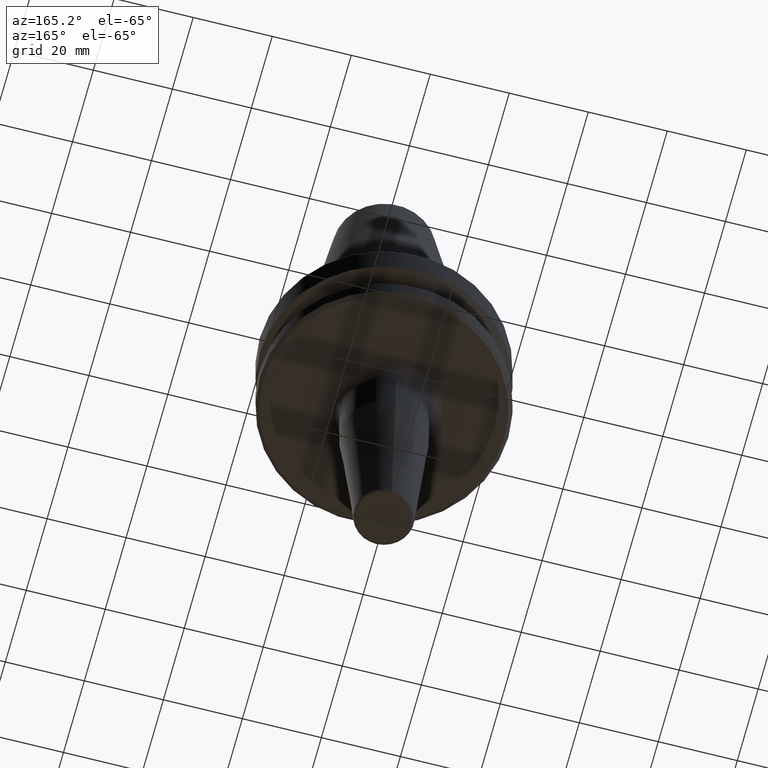
[diagram: clean part render]
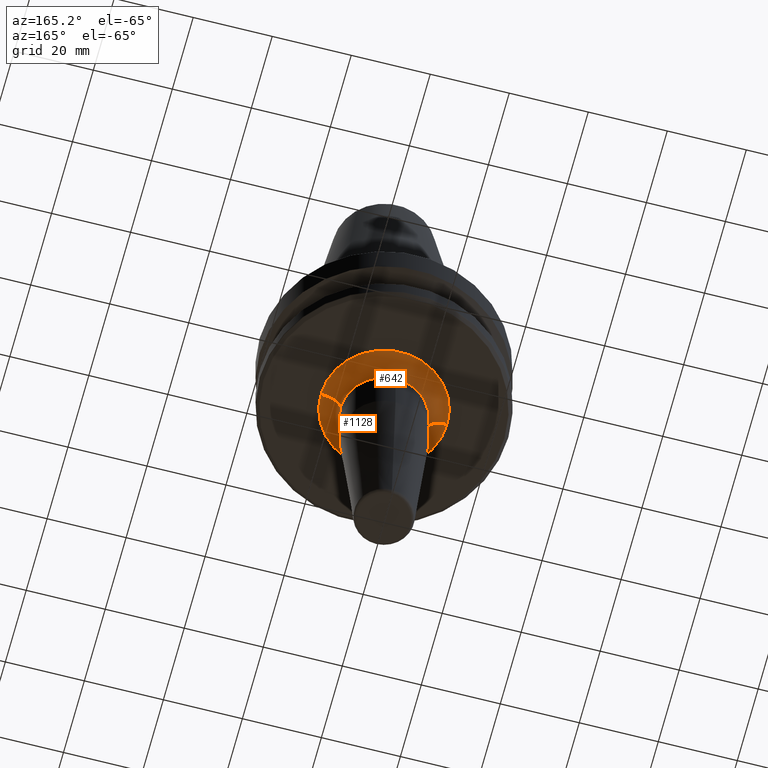
[diagram: same view with one multi-face feature highlighted, each face labeled with its STEP entity id]
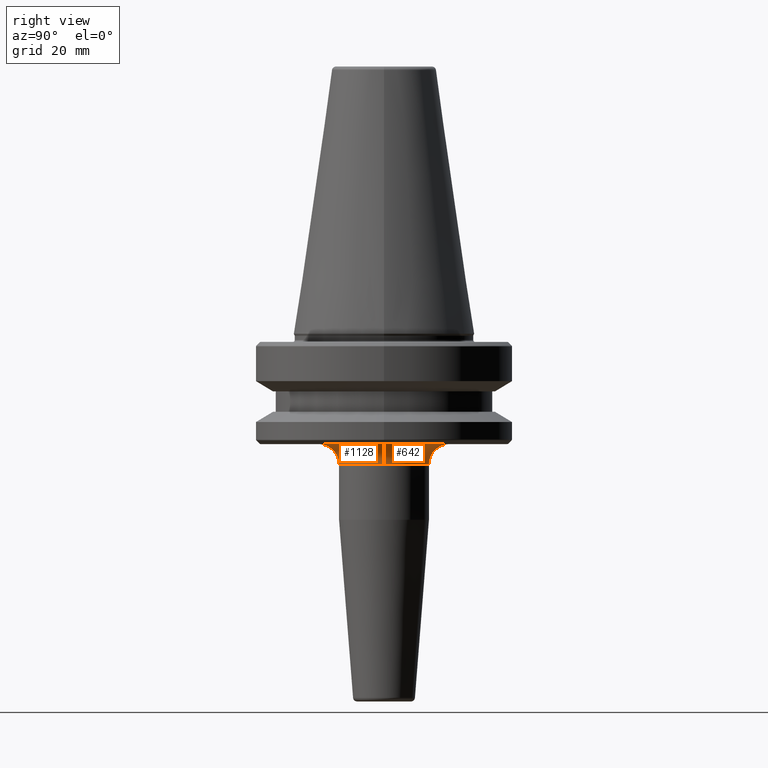
[diagram: same view with one multi-face feature highlighted, each face labeled with its STEP entity id]
A machine part, auxiliary view. The highlighted faces form ONE feature: a constant-radius fillet chain: 2 tangent blend faces with common blend radius 5 mm. The faces share edges in the B-rep.
A second angle (right view) of the same feature is appended — it is thin or edge-on in the first view.
Their STEP definitions:
[1] entity #642 (Torus):
#77 = EDGE_CURVE ( 'NONE', #702, #761, #1199, .T. ) ;
#86 = CIRCLE ( 'NONE', #1263, 11.00000000000002300 ) ;
#115 = CARTESIAN_POINT ( 'NONE',  ( -16.00000000000002500, 2.786511573650823900E-015, -27.00000000000000400 ) ) ;
#138 = VERTEX_POINT ( 'NONE', #540 ) ;
#158 = EDGE_CURVE ( 'NONE', #1264, #568, #553, .T. ) ;
#177 = CIRCLE ( 'NONE', #676, 5.000000000000000900 ) ;
#199 = DIRECTION ( 'NONE',  ( 0.0000000000000000000, 0.0000000000000000000, -1.000000000000000000 ) ) ;
#212 = AXIS2_PLACEMENT_3D ( 'NONE', #809, #228, #905 ) ;
#215 = CARTESIAN_POINT ( 'NONE',  ( 16.00000000000002500, 4.745946452286592600E-015, -32.00000000000000000 ) ) ;
#228 = DIRECTION ( 'NONE',  ( 0.0000000000000000000, 0.0000000000000000000, -1.000000000000000000 ) ) ;
#253 = ORIENTED_EDGE ( 'NONE', *, *, #77, .T. ) ;
#306 = DIRECTION ( 'NONE',  ( -1.000000000000000000, -1.224646799147353500E-016, 0.0000000000000000000 ) ) ;
#352 = CARTESIAN_POINT ( 'NONE',  ( 0.0000000000000000000, 2.786511573650823900E-015, -32.00000000000000000 ) ) ;
#372 = ORIENTED_EDGE ( 'NONE', *, *, #158, .F. ) ;
#389 = AXIS2_PLACEMENT_3D ( 'NONE', #397, #199, #1079 ) ;
#392 = ORIENTED_EDGE ( 'NONE', *, *, #987, .F. ) ;
#397 = CARTESIAN_POINT ( 'NONE',  ( 0.0000000000000000000, 2.786511573650823900E-015, -32.00000000000000000 ) ) ;
#451 = DIRECTION ( 'NONE',  ( -1.000000000000000000, 0.0000000000000000000, 0.0000000000000000000 ) ) ;
#496 = CARTESIAN_POINT ( 'NONE',  ( 11.00000000000002300, 4.439784752499753900E-015, -32.00000000000000000 ) ) ;
#533 = DIRECTION ( 'NONE',  ( -0.0000000000000000000, -0.0000000000000000000, 1.000000000000000000 ) ) ;
#540 = CARTESIAN_POINT ( 'NONE',  ( 16.00000000000002500, 4.745946452286592600E-015, -27.00000000000000400 ) ) ;
#553 = CIRCLE ( 'NONE', #212, 11.00000000000002300 ) ;
#555 = ORIENTED_EDGE ( 'NONE', *, *, #843, .F. ) ;
#568 = VERTEX_POINT ( 'NONE', #496 ) ;
#641 = CARTESIAN_POINT ( 'NONE',  ( 0.0000000000000000000, 11.00000000000002700, -32.00000000000000000 ) ) ;
#642 = ADVANCED_FACE ( 'NONE', ( #897 ), #672, .F. ) ;
#672 = TOROIDAL_SURFACE ( 'NONE', #389, 16.00000000000002500, 5.000000000000000000 ) ;
#676 = AXIS2_PLACEMENT_3D ( 'NONE', #215, #892, #306 ) ;
#690 = DIRECTION ( 'NONE',  ( 0.0000000000000000000, 0.0000000000000000000, -1.000000000000000000 ) ) ;
#702 = VERTEX_POINT ( 'NONE', #862 ) ;
#761 = VERTEX_POINT ( 'NONE', #115 ) ;
#796 = AXIS2_PLACEMENT_3D ( 'NONE', #831, #1273, #690 ) ;
#809 = CARTESIAN_POINT ( 'NONE',  ( 0.0000000000000000000, 2.786511573650823900E-015, -32.00000000000000000 ) ) ;
#824 = EDGE_LOOP ( 'NONE', ( #555, #372, #1037, #253, #392 ) ) ;
#831 = CARTESIAN_POINT ( 'NONE',  ( -16.00000000000002500, 2.786511573650823900E-015, -32.00000000000000000 ) ) ;
#843 = EDGE_CURVE ( 'NONE', #568, #138, #177, .T. ) ;
#862 = CARTESIAN_POINT ( 'NONE',  ( -11.00000000000002300, 2.786511573650823900E-015, -32.00000000000000000 ) ) ;
#892 = DIRECTION ( 'NONE',  ( -1.224646799147353200E-016, 1.000000000000000000, 0.0000000000000000000 ) ) ;
#897 = FACE_OUTER_BOUND ( 'NONE', #824, .T. ) ;
#905 = DIRECTION ( 'NONE',  ( -1.000000000000000000, 0.0000000000000000000, 0.0000000000000000000 ) ) ;
#987 = EDGE_CURVE ( 'NONE', #138, #761, #1259, .T. ) ;
#1036 = DIRECTION ( 'NONE',  ( 0.0000000000000000000, 0.0000000000000000000, -1.000000000000000000 ) ) ;
#1037 = ORIENTED_EDGE ( 'NONE', *, *, #1256, .F. ) ;
#1054 = AXIS2_PLACEMENT_3D ( 'NONE', #1131, #533, #1228 ) ;
#1079 = DIRECTION ( 'NONE',  ( -1.000000000000000000, 0.0000000000000000000, 0.0000000000000000000 ) ) ;
#1131 = CARTESIAN_POINT ( 'NONE',  ( 0.0000000000000000000, 2.786511573650823900E-015, -27.00000000000000400 ) ) ;
#1199 = CIRCLE ( 'NONE', #796, 4.999999999999997300 ) ;
#1228 = DIRECTION ( 'NONE',  ( -1.000000000000000000, 0.0000000000000000000, 0.0000000000000000000 ) ) ;
#1256 = EDGE_CURVE ( 'NONE', #702, #1264, #86, .T. ) ;
#1259 = CIRCLE ( 'NONE', #1054, 16.00000000000002500 ) ;
#1263 = AXIS2_PLACEMENT_3D ( 'NONE', #352, #1036, #451 ) ;
#1264 = VERTEX_POINT ( 'NONE', #641 ) ;
#1273 = DIRECTION ( 'NONE',  ( -0.0000000000000000000, -1.000000000000000000, -0.0000000000000000000 ) ) ;
[2] entity #1128 (Torus):
#23 = ORIENTED_EDGE ( 'NONE', *, *, #480, .F. ) ;
#57 = CIRCLE ( 'NONE', #406, 16.00000000000002500 ) ;
#77 = EDGE_CURVE ( 'NONE', #702, #761, #1199, .T. ) ;
#105 = CIRCLE ( 'NONE', #605, 11.00000000000002300 ) ;
#115 = CARTESIAN_POINT ( 'NONE',  ( -16.00000000000002500, 2.786511573650823900E-015, -27.00000000000000400 ) ) ;
#138 = VERTEX_POINT ( 'NONE', #540 ) ;
#174 = FACE_OUTER_BOUND ( 'NONE', #916, .T. ) ;
#177 = CIRCLE ( 'NONE', #676, 5.000000000000000900 ) ;
#209 = DIRECTION ( 'NONE',  ( 0.0000000000000000000, 0.0000000000000000000, -1.000000000000000000 ) ) ;
#213 = CIRCLE ( 'NONE', #900, 11.00000000000002300 ) ;
#215 = CARTESIAN_POINT ( 'NONE',  ( 16.00000000000002500, 4.745946452286592600E-015, -32.00000000000000000 ) ) ;
#234 = DIRECTION ( 'NONE',  ( 0.0000000000000000000, 0.0000000000000000000, -1.000000000000000000 ) ) ;
#239 = CARTESIAN_POINT ( 'NONE',  ( 0.0000000000000000000, 2.786511573650823900E-015, -27.00000000000000400 ) ) ;
#273 = EDGE_CURVE ( 'NONE', #455, #702, #213, .T. ) ;
#306 = DIRECTION ( 'NONE',  ( -1.000000000000000000, -1.224646799147353500E-016, 0.0000000000000000000 ) ) ;
#337 = DIRECTION ( 'NONE',  ( -1.000000000000000000, 0.0000000000000000000, 0.0000000000000000000 ) ) ;
#396 = ORIENTED_EDGE ( 'NONE', *, *, #843, .T. ) ;
#406 = AXIS2_PLACEMENT_3D ( 'NONE', #239, #921, #337 ) ;
#430 = TOROIDAL_SURFACE ( 'NONE', #520, 16.00000000000002500, 5.000000000000000000 ) ;
#455 = VERTEX_POINT ( 'NONE', #811 ) ;
#480 = EDGE_CURVE ( 'NONE', #761, #138, #57, .T. ) ;
#496 = CARTESIAN_POINT ( 'NONE',  ( 11.00000000000002300, 4.439784752499753900E-015, -32.00000000000000000 ) ) ;
#509 = ORIENTED_EDGE ( 'NONE', *, *, #273, .F. ) ;
#513 = DIRECTION ( 'NONE',  ( -1.000000000000000000, 0.0000000000000000000, 0.0000000000000000000 ) ) ;
#520 = AXIS2_PLACEMENT_3D ( 'NONE', #755, #1244, #513 ) ;
#540 = CARTESIAN_POINT ( 'NONE',  ( 16.00000000000002500, 4.745946452286592600E-015, -27.00000000000000400 ) ) ;
#568 = VERTEX_POINT ( 'NONE', #496 ) ;
#571 = ORIENTED_EDGE ( 'NONE', *, *, #77, .F. ) ;
#605 = AXIS2_PLACEMENT_3D ( 'NONE', #813, #234, #914 ) ;
#676 = AXIS2_PLACEMENT_3D ( 'NONE', #215, #892, #306 ) ;
#690 = DIRECTION ( 'NONE',  ( 0.0000000000000000000, 0.0000000000000000000, -1.000000000000000000 ) ) ;
#702 = VERTEX_POINT ( 'NONE', #862 ) ;
#755 = CARTESIAN_POINT ( 'NONE',  ( 0.0000000000000000000, 2.786511573650823900E-015, -32.00000000000000000 ) ) ;
#761 = VERTEX_POINT ( 'NONE', #115 ) ;
#790 = CARTESIAN_POINT ( 'NONE',  ( 0.0000000000000000000, 2.786511573650823900E-015, -32.00000000000000000 ) ) ;
#796 = AXIS2_PLACEMENT_3D ( 'NONE', #831, #1273, #690 ) ;
#811 = CARTESIAN_POINT ( 'NONE',  ( 1.347111479062092000E-015, -11.00000000000001800, -32.00000000000000000 ) ) ;
#813 = CARTESIAN_POINT ( 'NONE',  ( 0.0000000000000000000, 2.786511573650823900E-015, -32.00000000000000000 ) ) ;
#831 = CARTESIAN_POINT ( 'NONE',  ( -16.00000000000002500, 2.786511573650823900E-015, -32.00000000000000000 ) ) ;
#843 = EDGE_CURVE ( 'NONE', #568, #138, #177, .T. ) ;
#848 = EDGE_CURVE ( 'NONE', #568, #455, #105, .T. ) ;
#862 = CARTESIAN_POINT ( 'NONE',  ( -11.00000000000002300, 2.786511573650823900E-015, -32.00000000000000000 ) ) ;
#887 = DIRECTION ( 'NONE',  ( -1.000000000000000000, 0.0000000000000000000, 0.0000000000000000000 ) ) ;
#892 = DIRECTION ( 'NONE',  ( -1.224646799147353200E-016, 1.000000000000000000, 0.0000000000000000000 ) ) ;
#900 = AXIS2_PLACEMENT_3D ( 'NONE', #790, #209, #887 ) ;
#914 = DIRECTION ( 'NONE',  ( -1.000000000000000000, 0.0000000000000000000, 0.0000000000000000000 ) ) ;
#916 = EDGE_LOOP ( 'NONE', ( #1187, #396, #23, #571, #509 ) ) ;
#921 = DIRECTION ( 'NONE',  ( -0.0000000000000000000, -0.0000000000000000000, 1.000000000000000000 ) ) ;
#1128 = ADVANCED_FACE ( 'NONE', ( #174 ), #430, .F. ) ;
#1187 = ORIENTED_EDGE ( 'NONE', *, *, #848, .F. ) ;
#1199 = CIRCLE ( 'NONE', #796, 4.999999999999997300 ) ;
#1244 = DIRECTION ( 'NONE',  ( 0.0000000000000000000, 0.0000000000000000000, -1.000000000000000000 ) ) ;
#1273 = DIRECTION ( 'NONE',  ( -0.0000000000000000000, -1.000000000000000000, -0.0000000000000000000 ) ) ;